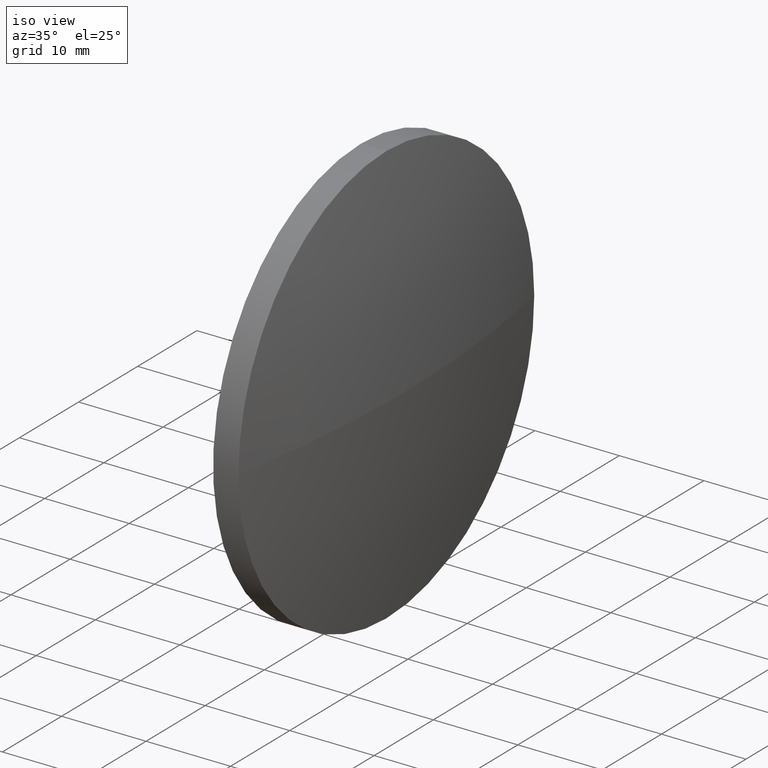
[diagram: clean part render]
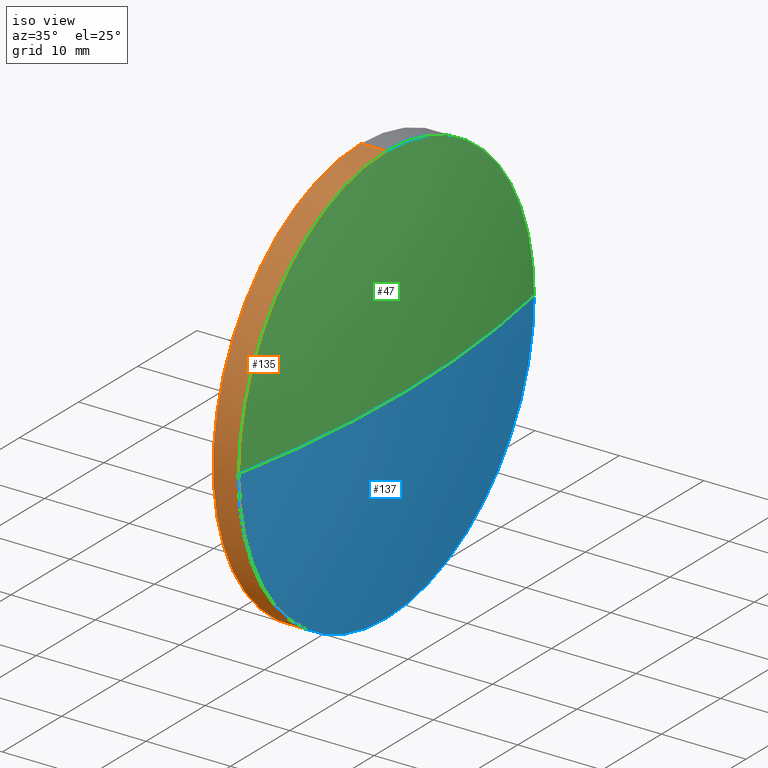
[diagram: same view with three faces highlighted in distinct colors, each labeled with its STEP entity id]
A machine part, iso view with three faces highlighted in distinct colors.
Their STEP definitions:

[orange] entity #135 — the highlighted cylindrical surface (partial cylindrical patch) has radius 25 mm, axis along (-1, -0, -0).
#7 = ORIENTED_EDGE ( 'NONE', *, *, #175, .T. ) ;
#12 = ORIENTED_EDGE ( 'NONE', *, *, #148, .T. ) ;
#15 = EDGE_LOOP ( 'NONE', ( #51, #121, #12, #7, #172 ) ) ;
#21 = CARTESIAN_POINT ( 'NONE',  ( 497.2595272355965800, 84.58581718796108400, -24.99999999999999300 ) ) ;
#23 = EDGE_CURVE ( 'NONE', #93, #87, #24, .T. ) ;
#24 = CIRCLE ( 'NONE', #56, 24.99999999999999300 ) ;
#29 = LINE ( 'NONE', #34, #131 ) ;
#33 = DIRECTION ( 'NONE',  ( -1.000000000000000000, -0.0000000000000000000, -0.0000000000000000000 ) ) ;
#34 = CARTESIAN_POINT ( 'NONE',  ( 497.2595272355965800, 84.58581718796108400, 24.99999999999999300 ) ) ;
#37 = VECTOR ( 'NONE', #130, 1000.000000000000000 ) ;
#45 = CARTESIAN_POINT ( 'NONE',  ( 504.2313025247127000, 84.58581718796108400, 24.99999999999999300 ) ) ;
#46 = DIRECTION ( 'NONE',  ( -1.000000000000000000, -0.0000000000000000000, -0.0000000000000000000 ) ) ;
#51 = ORIENTED_EDGE ( 'NONE', *, *, #163, .F. ) ;
#56 = AXIS2_PLACEMENT_3D ( 'NONE', #83, #128, #186 ) ;
#63 = AXIS2_PLACEMENT_3D ( 'NONE', #162, #46, #75 ) ;
#65 = FACE_OUTER_BOUND ( 'NONE', #15, .T. ) ;
#71 = DIRECTION ( 'NONE',  ( 0.0000000000000000000, 0.0000000000000000000, 1.000000000000000000 ) ) ;
#75 = DIRECTION ( 'NONE',  ( 0.0000000000000000000, 0.0000000000000000000, 1.000000000000000000 ) ) ;
#77 = DIRECTION ( 'NONE',  ( -1.000000000000000000, -0.0000000000000000000, -0.0000000000000000000 ) ) ;
#83 = CARTESIAN_POINT ( 'NONE',  ( 501.2313025247127000, 84.58581718796108400, 0.0000000000000000000 ) ) ;
#84 = DIRECTION ( 'NONE',  ( 0.0000000000000000000, 0.0000000000000000000, 1.000000000000000000 ) ) ;
#87 = VERTEX_POINT ( 'NONE', #144 ) ;
#93 = VERTEX_POINT ( 'NONE', #123 ) ;
#95 = CARTESIAN_POINT ( 'NONE',  ( 504.2313025247127000, 84.58581718796108400, -24.99999999999999300 ) ) ;
#104 = VERTEX_POINT ( 'NONE', #95 ) ;
#110 = CYLINDRICAL_SURFACE ( 'NONE', #63, 24.99999999999999300 ) ;
#115 = VERTEX_POINT ( 'NONE', #147 ) ;
#121 = ORIENTED_EDGE ( 'NONE', *, *, #166, .T. ) ;
#123 = CARTESIAN_POINT ( 'NONE',  ( 501.2313025247127000, 84.58581718796108400, -24.99999999999999300 ) ) ;
#128 = DIRECTION ( 'NONE',  ( -1.000000000000000000, -0.0000000000000000000, -0.0000000000000000000 ) ) ;
#130 = DIRECTION ( 'NONE',  ( -1.000000000000000000, -0.0000000000000000000, -0.0000000000000000000 ) ) ;
#131 = VECTOR ( 'NONE', #33, 1000.000000000000000 ) ;
#135 = ADVANCED_FACE ( 'NONE', ( #65 ), #110, .T. ) ;
#142 = AXIS2_PLACEMENT_3D ( 'NONE', #149, #77, #84 ) ;
#144 = CARTESIAN_POINT ( 'NONE',  ( 501.2313025247127000, 84.58581718796108400, 24.99999999999999300 ) ) ;
#147 = CARTESIAN_POINT ( 'NONE',  ( 504.2313025247127000, 59.58581718796111200, -3.061616997868378700E-015 ) ) ;
#148 = EDGE_CURVE ( 'NONE', #115, #159, #179, .T. ) ;
#149 = CARTESIAN_POINT ( 'NONE',  ( 504.2313025247127000, 84.58581718796108400, 0.0000000000000000000 ) ) ;
#151 = LINE ( 'NONE', #21, #37 ) ;
#157 = CARTESIAN_POINT ( 'NONE',  ( 504.2313025247127000, 84.58581718796108400, 0.0000000000000000000 ) ) ;
#159 = VERTEX_POINT ( 'NONE', #45 ) ;
#162 = CARTESIAN_POINT ( 'NONE',  ( 497.2595272355965800, 84.58581718796108400, 0.0000000000000000000 ) ) ;
#163 = EDGE_CURVE ( 'NONE', #104, #93, #151, .T. ) ;
#166 = EDGE_CURVE ( 'NONE', #104, #115, #167, .T. ) ;
#167 = CIRCLE ( 'NONE', #185, 24.99999999999999300 ) ;
#172 = ORIENTED_EDGE ( 'NONE', *, *, #23, .F. ) ;
#175 = EDGE_CURVE ( 'NONE', #159, #87, #29, .T. ) ;
#178 = DIRECTION ( 'NONE',  ( -1.000000000000000000, -0.0000000000000000000, -0.0000000000000000000 ) ) ;
#179 = CIRCLE ( 'NONE', #142, 24.99999999999999300 ) ;
#185 = AXIS2_PLACEMENT_3D ( 'NONE', #157, #178, #71 ) ;
#186 = DIRECTION ( 'NONE',  ( 0.0000000000000000000, 0.0000000000000000000, 1.000000000000000000 ) ) ;

[blue] entity #137 — the highlighted spherical surface has radius 129.294 mm.
#8 = CIRCLE ( 'NONE', #171, 129.2937704918034600 ) ;
#9 = AXIS2_PLACEMENT_3D ( 'NONE', #158, #55, #161 ) ;
#10 = ORIENTED_EDGE ( 'NONE', *, *, #108, .F. ) ;
#17 = DIRECTION ( 'NONE',  ( 0.0000000000000000000, 1.224646799147353200E-016, -1.000000000000000000 ) ) ;
#18 = CIRCLE ( 'NONE', #152, 129.2937704918034600 ) ;
#25 = EDGE_LOOP ( 'NONE', ( #10, #79, #180, #44 ) ) ;
#31 = CIRCLE ( 'NONE', #40, 24.99999999999999300 ) ;
#36 = CARTESIAN_POINT ( 'NONE',  ( 377.3775320329092400, 84.58581718796106900, 0.0000000000000000000 ) ) ;
#40 = AXIS2_PLACEMENT_3D ( 'NONE', #141, #54, #170 ) ;
#42 = DIRECTION ( 'NONE',  ( -0.0000000000000000000, 0.0000000000000000000, 1.000000000000000000 ) ) ;
#44 = ORIENTED_EDGE ( 'NONE', *, *, #94, .F. ) ;
#54 = DIRECTION ( 'NONE',  ( -1.000000000000000000, -0.0000000000000000000, -0.0000000000000000000 ) ) ;
#55 = DIRECTION ( 'NONE',  ( -0.0000000000000000000, 0.0000000000000000000, -1.000000000000000000 ) ) ;
#59 = DIRECTION ( 'NONE',  ( 1.000000000000000000, 0.0000000000000000000, 0.0000000000000000000 ) ) ;
#71 = DIRECTION ( 'NONE',  ( 0.0000000000000000000, 0.0000000000000000000, 1.000000000000000000 ) ) ;
#76 = FACE_OUTER_BOUND ( 'NONE', #25, .T. ) ;
#78 = EDGE_CURVE ( 'NONE', #153, #115, #8, .T. ) ;
#79 = ORIENTED_EDGE ( 'NONE', *, *, #78, .T. ) ;
#94 = EDGE_CURVE ( 'NONE', #109, #104, #31, .T. ) ;
#95 = CARTESIAN_POINT ( 'NONE',  ( 504.2313025247127000, 84.58581718796108400, -24.99999999999999300 ) ) ;
#96 = CARTESIAN_POINT ( 'NONE',  ( 377.3775320329092400, 84.58581718796106900, 0.0000000000000000000 ) ) ;
#104 = VERTEX_POINT ( 'NONE', #95 ) ;
#108 = EDGE_CURVE ( 'NONE', #153, #109, #18, .T. ) ;
#109 = VERTEX_POINT ( 'NONE', #124 ) ;
#112 = SPHERICAL_SURFACE ( 'NONE', #9, 129.2937704918034600 ) ;
#115 = VERTEX_POINT ( 'NONE', #147 ) ;
#124 = CARTESIAN_POINT ( 'NONE',  ( 504.2313025247127000, 109.5858171879610400, 0.0000000000000000000 ) ) ;
#134 = CARTESIAN_POINT ( 'NONE',  ( 506.6713025247127000, 84.58581718796108400, 0.0000000000000000000 ) ) ;
#137 = ADVANCED_FACE ( 'NONE', ( #76 ), #112, .T. ) ;
#141 = CARTESIAN_POINT ( 'NONE',  ( 504.2313025247127000, 84.58581718796108400, 0.0000000000000000000 ) ) ;
#147 = CARTESIAN_POINT ( 'NONE',  ( 504.2313025247127000, 59.58581718796111200, -3.061616997868378700E-015 ) ) ;
#152 = AXIS2_PLACEMENT_3D ( 'NONE', #36, #42, #59 ) ;
#153 = VERTEX_POINT ( 'NONE', #134 ) ;
#157 = CARTESIAN_POINT ( 'NONE',  ( 504.2313025247127000, 84.58581718796108400, 0.0000000000000000000 ) ) ;
#158 = CARTESIAN_POINT ( 'NONE',  ( 377.3775320329092400, 84.58581718796106900, 0.0000000000000000000 ) ) ;
#161 = DIRECTION ( 'NONE',  ( 0.0000000000000000000, 1.000000000000000000, 0.0000000000000000000 ) ) ;
#166 = EDGE_CURVE ( 'NONE', #104, #115, #167, .T. ) ;
#167 = CIRCLE ( 'NONE', #185, 24.99999999999999300 ) ;
#168 = DIRECTION ( 'NONE',  ( 0.0000000000000000000, 1.000000000000000000, 1.224646799147353200E-016 ) ) ;
#170 = DIRECTION ( 'NONE',  ( 0.0000000000000000000, 0.0000000000000000000, 1.000000000000000000 ) ) ;
#171 = AXIS2_PLACEMENT_3D ( 'NONE', #96, #17, #168 ) ;
#178 = DIRECTION ( 'NONE',  ( -1.000000000000000000, -0.0000000000000000000, -0.0000000000000000000 ) ) ;
#180 = ORIENTED_EDGE ( 'NONE', *, *, #166, .F. ) ;
#185 = AXIS2_PLACEMENT_3D ( 'NONE', #157, #178, #71 ) ;

[green] entity #47 — the highlighted spherical surface has radius 129.294 mm.
#8 = CIRCLE ( 'NONE', #171, 129.2937704918034600 ) ;
#11 = CIRCLE ( 'NONE', #117, 24.99999999999999300 ) ;
#13 = CARTESIAN_POINT ( 'NONE',  ( 504.2313025247127000, 84.58581718796108400, 0.0000000000000000000 ) ) ;
#16 = DIRECTION ( 'NONE',  ( -1.000000000000000000, -0.0000000000000000000, -0.0000000000000000000 ) ) ;
#17 = DIRECTION ( 'NONE',  ( 0.0000000000000000000, 1.224646799147353200E-016, -1.000000000000000000 ) ) ;
#18 = CIRCLE ( 'NONE', #152, 129.2937704918034600 ) ;
#30 = DIRECTION ( 'NONE',  ( 0.0000000000000000000, 0.0000000000000000000, 1.000000000000000000 ) ) ;
#36 = CARTESIAN_POINT ( 'NONE',  ( 377.3775320329092400, 84.58581718796106900, 0.0000000000000000000 ) ) ;
#39 = CARTESIAN_POINT ( 'NONE',  ( 377.3775320329092400, 84.58581718796106900, 0.0000000000000000000 ) ) ;
#42 = DIRECTION ( 'NONE',  ( -0.0000000000000000000, 0.0000000000000000000, 1.000000000000000000 ) ) ;
#45 = CARTESIAN_POINT ( 'NONE',  ( 504.2313025247127000, 84.58581718796108400, 24.99999999999999300 ) ) ;
#47 = ADVANCED_FACE ( 'NONE', ( #138 ), #145, .T. ) ;
#53 = ORIENTED_EDGE ( 'NONE', *, *, #66, .F. ) ;
#59 = DIRECTION ( 'NONE',  ( 1.000000000000000000, 0.0000000000000000000, 0.0000000000000000000 ) ) ;
#64 = ORIENTED_EDGE ( 'NONE', *, *, #148, .F. ) ;
#66 = EDGE_CURVE ( 'NONE', #159, #109, #11, .T. ) ;
#67 = EDGE_LOOP ( 'NONE', ( #68, #97, #53, #64 ) ) ;
#68 = ORIENTED_EDGE ( 'NONE', *, *, #78, .F. ) ;
#77 = DIRECTION ( 'NONE',  ( -1.000000000000000000, -0.0000000000000000000, -0.0000000000000000000 ) ) ;
#78 = EDGE_CURVE ( 'NONE', #153, #115, #8, .T. ) ;
#82 = AXIS2_PLACEMENT_3D ( 'NONE', #39, #156, #184 ) ;
#84 = DIRECTION ( 'NONE',  ( 0.0000000000000000000, 0.0000000000000000000, 1.000000000000000000 ) ) ;
#96 = CARTESIAN_POINT ( 'NONE',  ( 377.3775320329092400, 84.58581718796106900, 0.0000000000000000000 ) ) ;
#97 = ORIENTED_EDGE ( 'NONE', *, *, #108, .T. ) ;
#108 = EDGE_CURVE ( 'NONE', #153, #109, #18, .T. ) ;
#109 = VERTEX_POINT ( 'NONE', #124 ) ;
#115 = VERTEX_POINT ( 'NONE', #147 ) ;
#117 = AXIS2_PLACEMENT_3D ( 'NONE', #13, #16, #30 ) ;
#124 = CARTESIAN_POINT ( 'NONE',  ( 504.2313025247127000, 109.5858171879610400, 0.0000000000000000000 ) ) ;
#134 = CARTESIAN_POINT ( 'NONE',  ( 506.6713025247127000, 84.58581718796108400, 0.0000000000000000000 ) ) ;
#138 = FACE_OUTER_BOUND ( 'NONE', #67, .T. ) ;
#142 = AXIS2_PLACEMENT_3D ( 'NONE', #149, #77, #84 ) ;
#145 = SPHERICAL_SURFACE ( 'NONE', #82, 129.2937704918034600 ) ;
#147 = CARTESIAN_POINT ( 'NONE',  ( 504.2313025247127000, 59.58581718796111200, -3.061616997868378700E-015 ) ) ;
#148 = EDGE_CURVE ( 'NONE', #115, #159, #179, .T. ) ;
#149 = CARTESIAN_POINT ( 'NONE',  ( 504.2313025247127000, 84.58581718796108400, 0.0000000000000000000 ) ) ;
#152 = AXIS2_PLACEMENT_3D ( 'NONE', #36, #42, #59 ) ;
#153 = VERTEX_POINT ( 'NONE', #134 ) ;
#156 = DIRECTION ( 'NONE',  ( -0.0000000000000000000, 0.0000000000000000000, -1.000000000000000000 ) ) ;
#159 = VERTEX_POINT ( 'NONE', #45 ) ;
#168 = DIRECTION ( 'NONE',  ( 0.0000000000000000000, 1.000000000000000000, 1.224646799147353200E-016 ) ) ;
#171 = AXIS2_PLACEMENT_3D ( 'NONE', #96, #17, #168 ) ;
#179 = CIRCLE ( 'NONE', #142, 24.99999999999999300 ) ;
#184 = DIRECTION ( 'NONE',  ( 0.0000000000000000000, 1.000000000000000000, 0.0000000000000000000 ) ) ;